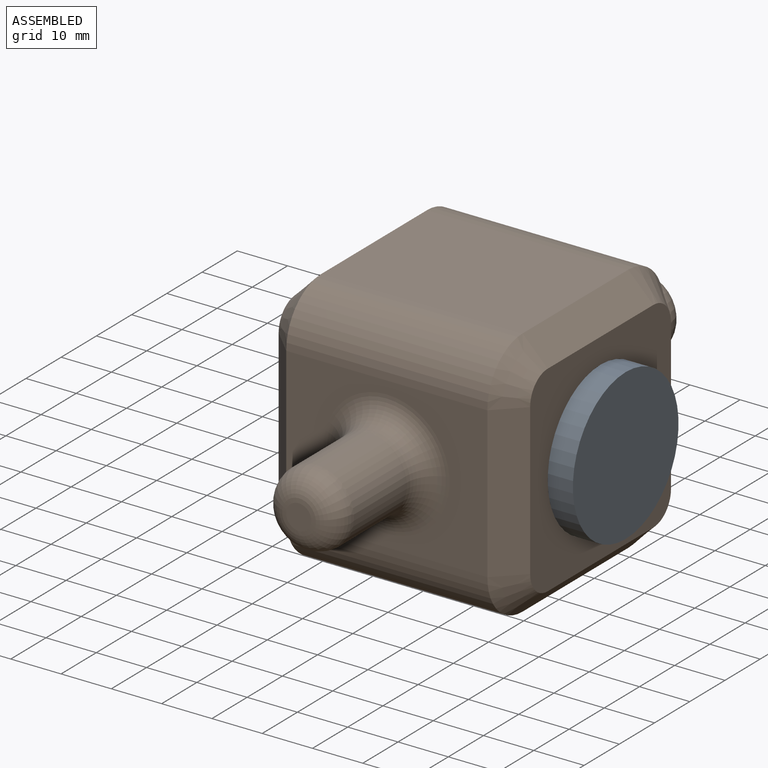
[diagram: assembled view]
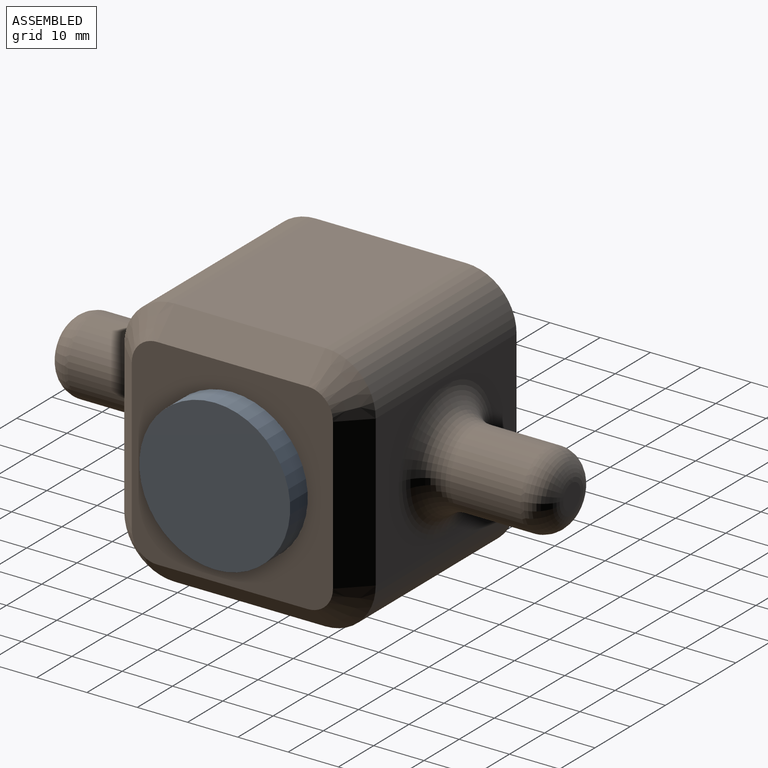
[diagram: assembled view, second angle]
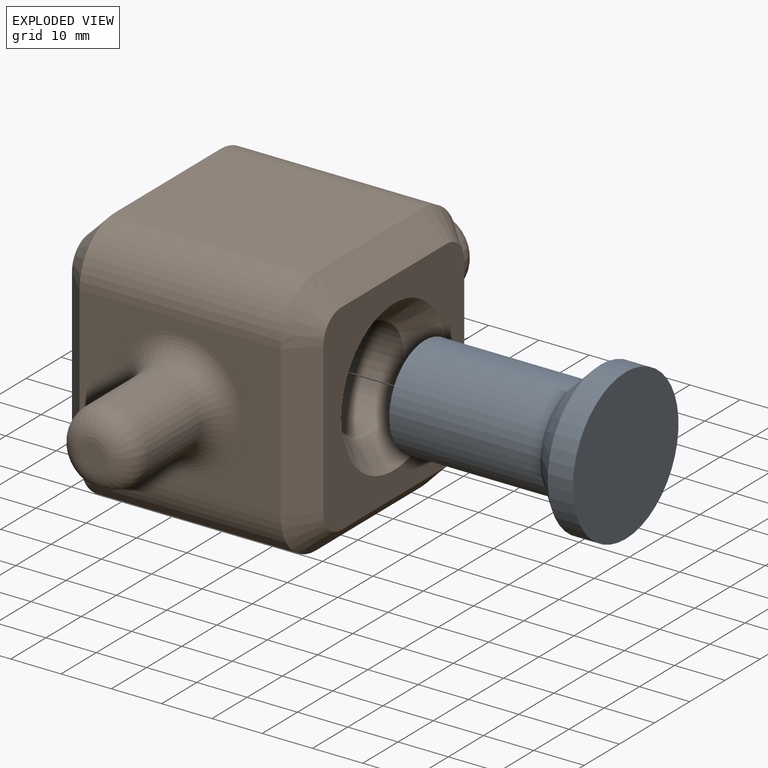
[diagram: exploded view]
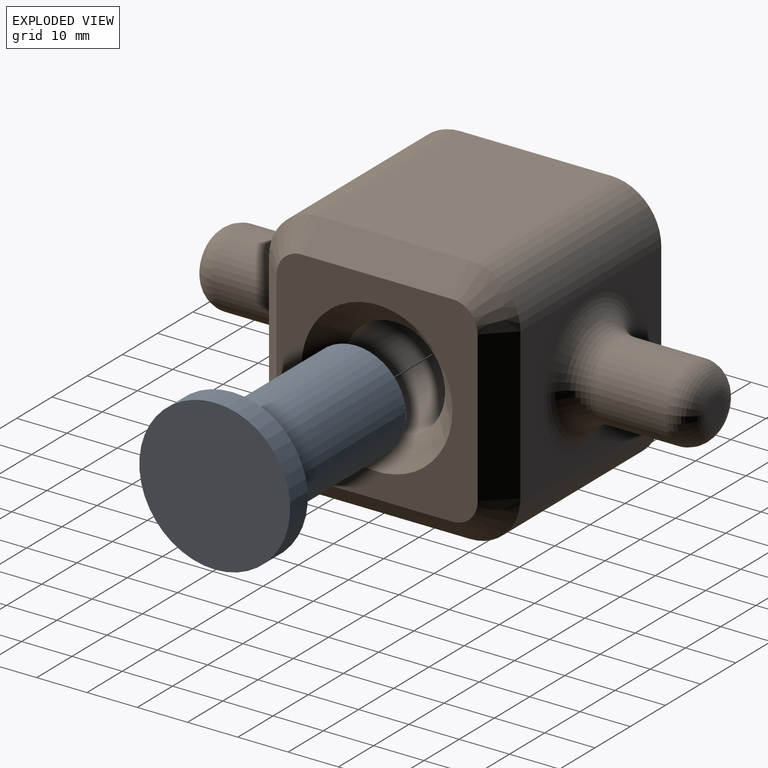
[diagram: exploded view, second angle]
ASSEMBLY  parts=2 mates=2
PART A: 5 faces, bbox 30x30x40 mm
  f0: plane 20x20mm, normal (0,0,-1), area 314.2mm2, adj f1
  f1: cylinder r=10mm len=30mm, axis (0,0,-1), area 1885mm2, adj f0,f4
  f2: cylinder r=15mm len=30mm, axis (0,0,-1), area 471.2mm2, adj f3,f4
  f3: plane 30x30mm, normal (0,0,1), area 706.9mm2, adj f2
  f4: cone r=10mm half-angle=45deg, axis (0,0,1), area 555.4mm2, adj f1,f2
PART B: 37 faces, bbox 50x100x50 mm
  f0: plane 40x40mm, normal (-1,0,0), area 871.7mm2, adj f20,f21,f22,f23,f24,f25,f26,f27
  f1: plane 40x30mm, normal (0,-1,0), area 709.1mm2, adj f7,f9,f14,f23,f35
  f2: plane 40x40mm, normal (1,0,0), area 871.7mm2, adj f11,f12,f13,f14,f15,f16,f17,f18
  f3: plane 40x30mm, normal (0,1,0), area 627.4mm2, adj f8,f10,f15,f24,f32
  f4: plane 40x30mm, normal (0,0,1), area 1200mm2, adj f9,f10,f18,f27
  f5: plane 40x30mm, normal (0,0,-1), area 1200mm2, adj f7,f8,f11,f20
  f6: cylinder r=10mm len=40mm, axis (-1,0,0), area 2513.3mm2, adj f19,f28
  f7: cylinder r=10mm len=40mm, axis (1,0,0), area 628.3mm2, adj f1,f5,f12,f21
  f8: cylinder r=10mm len=40mm, axis (-1,0,0), area 628.3mm2, adj f3,f5,f13,f22
  f9: cylinder r=10mm len=40mm, axis (-1,0,0), area 628.3mm2, adj f1,f4,f16,f25
  f10: cylinder r=10mm len=40mm, axis (1,0,0), area 628.3mm2, adj f3,f4,f17,f26
  f11: plane 30x5mm, normal (0.71,0,-0.71), area 212.1mm2, adj f2,f5,f12,f13
  f12: cone r=5mm half-angle=45deg, axis (-1,0,0), area 83.3mm2, adj f2,f7,f11,f14
  f13: cone r=5mm half-angle=45deg, axis (-1,0,0), area 83.3mm2, adj f2,f8,f11,f15
  f14: plane 30x5mm, normal (0.71,-0.71,0), area 212.1mm2, adj f1,f2,f12,f16
  f15: plane 30x5mm, normal (0.71,0.71,0), area 212.1mm2, adj f2,f3,f13,f17
  f16: cone r=5mm half-angle=45deg, axis (-1,0,0), area 83.3mm2, adj f2,f9,f14,f18
  f17: cone r=5mm half-angle=45deg, axis (-1,0,0), area 83.3mm2, adj f2,f10,f15,f18
  f18: plane 30x5mm, normal (0.71,0,0.71), area 212.1mm2, adj f2,f4,f16,f17
  f19: cone r=10mm half-angle=45deg, axis (1,0,0), area 555.4mm2, adj f2,f6
  f20: plane 30x5mm, normal (-0.71,0,-0.71), area 212.1mm2, adj f0,f5,f21,f22
  f21: cone r=5mm half-angle=45deg, axis (1,0,0), area 83.3mm2, adj f0,f7,f20,f23
  f22: cone r=5mm half-angle=45deg, axis (1,0,0), area 83.3mm2, adj f0,f8,f20,f24
  f23: plane 30x5mm, normal (-0.71,-0.71,0), area 212.1mm2, adj f0,f1,f21,f25
  f24: plane 30x5mm, normal (-0.71,0.71,0), area 212.1mm2, adj f0,f3,f22,f26
  f25: cone r=5mm half-angle=45deg, axis (1,0,0), area 83.3mm2, adj f0,f9,f23,f27
  f26: cone r=5mm half-angle=45deg, axis (1,0,0), area 83.3mm2, adj f0,f10,f24,f27
  f27: plane 30x5mm, normal (-0.71,0,0.71), area 212.1mm2, adj f0,f4,f25,f26
  f28: cone r=10mm half-angle=45deg, axis (-1,0,0), area 555.4mm2, adj f0,f6
  f29: cylinder r=7.5mm len=15mm, axis (0,-1,0), area 659.7mm2, adj f31,f32
  f30: plane 5x5mm, normal (0,1,0), area 19.6mm2, adj f31
  f31: torus R=2.5mm, axis (0,1,0), area 280.4mm2, adj f29,f30
  f32: torus R=13.5mm, axis (0,1,0), area 573.2mm2, adj f3,f29
  f33: cylinder r=7.5mm len=15mm, axis (0,1,0), area 706.9mm2, adj f35,f36
  f34: plane 5x5mm, normal (0,-1,0), area 19.6mm2, adj f36
  f35: torus R=12.5mm, axis (0,1,0), area 459.8mm2, adj f1,f33
  f36: torus R=2.5mm, axis (0,-1,0), area 280.4mm2, adj f33,f34
PLACE A rot(axis=(0,1,0),90deg) t=(40.12,14.49,38.81)mm
PLACE B t=(25.12,-10.51,13.81)mm
MATE planar A.f1 <-> B.f6  axis (1,0,0) through (72.62,14.49,38.81)mm
MATE slider A.f1 <-> B.f6  axis (-1,0,0) through (55.12,14.49,38.81)mm
